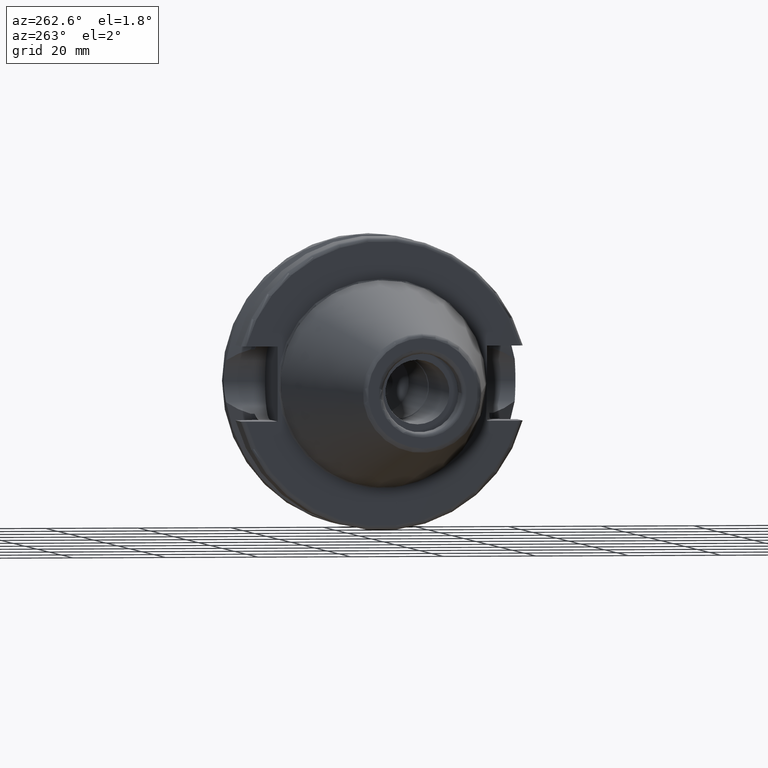
[diagram: clean part render]
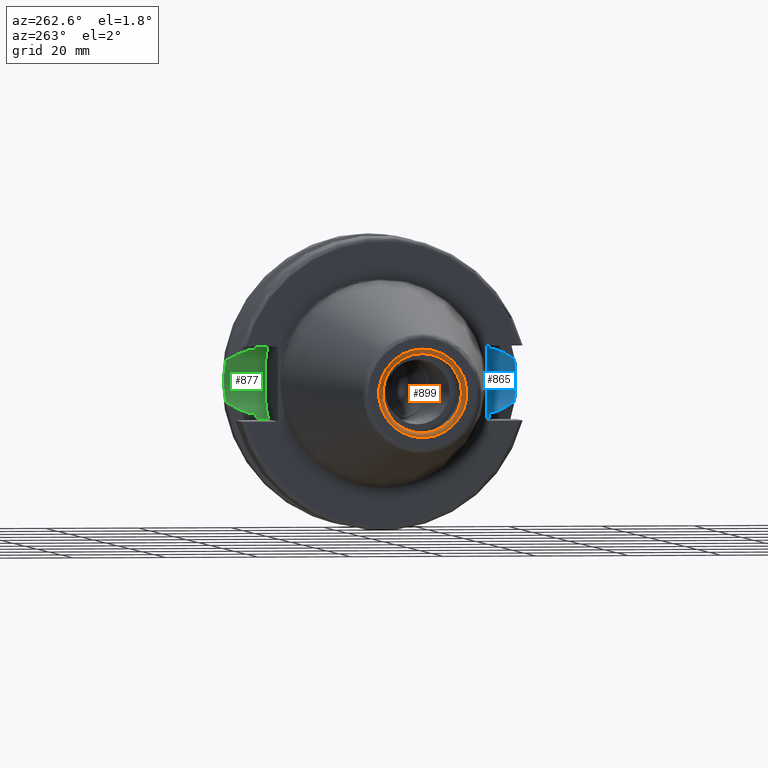
[diagram: same view with three faces highlighted in distinct colors, each labeled with its STEP entity id]
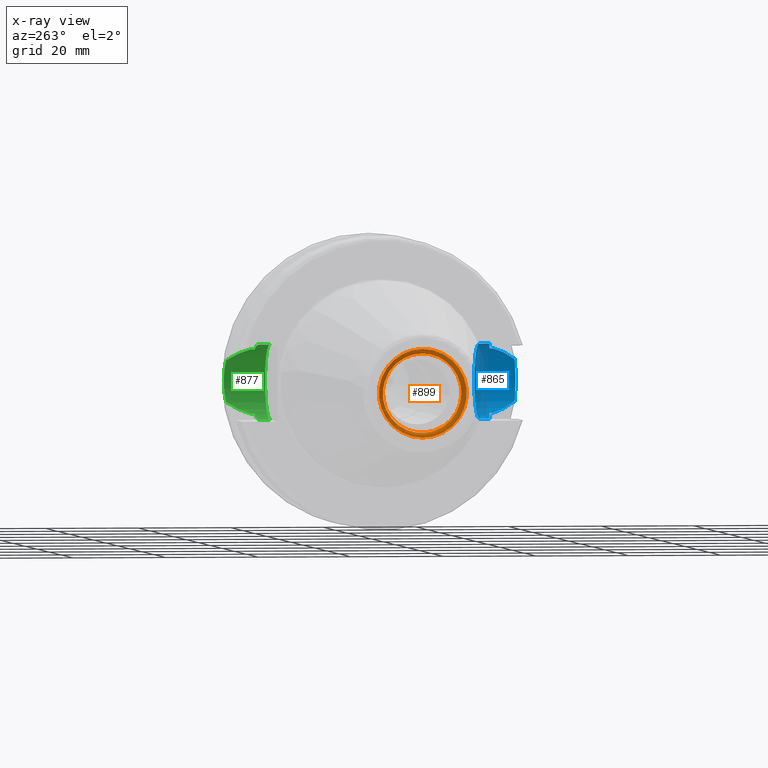
[diagram: x-ray of the same camera — body ghosted, the three highlighted faces saturated]
A machine part, auxiliary view with three faces highlighted in distinct colors.
The next image is the same camera in x-ray (body ghosted, the three faces saturated) — at least one of them is partly hidden behind the body in this view.
Their STEP definitions:

[orange] entity #899 — the highlighted toroidal blend (fillet) surface has major radius 9.5 mm and minor (blend) radius 1 mm.
#41=TOROIDAL_SURFACE('',#1030,9.5,1.);
#116=CIRCLE('',#1028,8.5);
#117=CIRCLE('',#1029,8.5);
#118=CIRCLE('',#1031,9.5);
#119=CIRCLE('',#1032,1.);
#187=FACE_OUTER_BOUND('',#246,.T.);
#246=EDGE_LOOP('',(#840,#841,#842,#843,#844));
#448=VERTEX_POINT('',#1888);
#449=VERTEX_POINT('',#1890);
#450=VERTEX_POINT('',#1894);
#579=EDGE_CURVE('',#449,#448,#116,.T.);
#580=EDGE_CURVE('',#448,#449,#117,.T.);
#581=EDGE_CURVE('',#450,#450,#118,.T.);
#582=EDGE_CURVE('',#450,#449,#119,.T.);
#840=ORIENTED_EDGE('',*,*,#581,.F.);
#841=ORIENTED_EDGE('',*,*,#582,.T.);
#842=ORIENTED_EDGE('',*,*,#579,.T.);
#843=ORIENTED_EDGE('',*,*,#580,.T.);
#844=ORIENTED_EDGE('',*,*,#582,.F.);
#899=ADVANCED_FACE('',(#187),#41,.T.);
#1028=AXIS2_PLACEMENT_3D('',#1891,#1292,#1293);
#1029=AXIS2_PLACEMENT_3D('',#1892,#1294,#1295);
#1030=AXIS2_PLACEMENT_3D('',#1893,#1296,#1297);
#1031=AXIS2_PLACEMENT_3D('',#1895,#1298,#1299);
#1032=AXIS2_PLACEMENT_3D('',#1896,#1300,#1301);
#1292=DIRECTION('center_axis',(1.,0.,0.));
#1293=DIRECTION('ref_axis',(0.,0.,-1.));
#1294=DIRECTION('center_axis',(1.,0.,0.));
#1295=DIRECTION('ref_axis',(0.,0.,-1.));
#1296=DIRECTION('center_axis',(1.,0.,0.));
#1297=DIRECTION('ref_axis',(0.,0.,-1.));
#1298=DIRECTION('center_axis',(1.,0.,0.));
#1299=DIRECTION('ref_axis',(0.,0.,-1.));
#1300=DIRECTION('center_axis',(0.,-1.,-1.22464679914735E-16));
#1301=DIRECTION('ref_axis',(0.,-1.22464679914735E-16,1.));
#1888=CARTESIAN_POINT('',(-64.4,-8.5,-1.04094977927525E-15));
#1890=CARTESIAN_POINT('',(-64.4,-1.04094977927525E-15,8.5));
#1891=CARTESIAN_POINT('Origin',(-64.4,0.,0.));
#1892=CARTESIAN_POINT('Origin',(-64.4,0.,0.));
#1893=CARTESIAN_POINT('Origin',(-64.4,0.,0.));
#1894=CARTESIAN_POINT('',(-65.4,-1.16341445918999E-15,9.5));
#1895=CARTESIAN_POINT('Origin',(-65.4,0.,0.));
#1896=CARTESIAN_POINT('Origin',(-64.4,-1.16341445918999E-15,9.5));

[blue] entity #865 — the highlighted cylindrical surface (partial cylindrical patch) has radius 8.05 mm, axis along (0, 1, 0).
#82=CIRCLE('',#961,8.05);
#126=CYLINDRICAL_SURFACE('',#960,8.05);
#153=FACE_OUTER_BOUND('',#210,.T.);
#210=EDGE_LOOP('',(#657,#658,#659,#660,#661,#662,#663,#664,#665,#666,#667));
#256=B_SPLINE_CURVE_WITH_KNOTS('',3,(#1607,#1608,#1609,#1610,#1611,#1612),
 .UNSPECIFIED.,.F.,.F.,(4,2,4),(2.02427460070182,2.13747311195296,2.44288295924093),
 .UNSPECIFIED.);
#257=B_SPLINE_CURVE_WITH_KNOTS('',3,(#1616,#1617,#1618,#1619,#1620,#1621),
 .UNSPECIFIED.,.F.,.F.,(4,2,4),(3.12975744792551,3.6269928875698,3.7084873746139),
 .UNSPECIFIED.);
#258=B_SPLINE_CURVE_WITH_KNOTS('',3,(#1623,#1624,#1625,#1626,#1627,#1628),
 .UNSPECIFIED.,.F.,.F.,(4,2,4),(1.21877751840372,1.52344857393281,1.67526011710938),
 .UNSPECIFIED.);
#259=B_SPLINE_CURVE_WITH_KNOTS('',3,(#1630,#1631,#1632,#1633,#1634,#1635),
 .UNSPECIFIED.,.F.,.F.,(4,2,4),(0.762294919698049,0.914106462874623,1.21877751840372),
 .UNSPECIFIED.);
#260=B_SPLINE_CURVE_WITH_KNOTS('',3,(#1637,#1638,#1639,#1640,#1641,#1642),
 .UNSPECIFIED.,.F.,.F.,(4,2,4),(1.46421027899563,1.54570476603974,2.04294020568402),
 .UNSPECIFIED.);
#261=B_SPLINE_CURVE_WITH_KNOTS('',3,(#1646,#1647,#1648,#1649,#1650,#1651),
 .UNSPECIFIED.,.F.,.F.,(4,2,4),(0.,0.305409847287967,0.418608358539112),
 .UNSPECIFIED.);
#282=LINE('',#1614,#330);
#283=LINE('',#1644,#331);
#284=LINE('',#1653,#332);
#285=LINE('',#1656,#333);
#330=VECTOR('',#1121,10.);
#331=VECTOR('',#1122,10.);
#332=VECTOR('',#1123,10.);
#333=VECTOR('',#1126,10.);
#390=VERTEX_POINT('',#1605);
#391=VERTEX_POINT('',#1606);
#392=VERTEX_POINT('',#1613);
#393=VERTEX_POINT('',#1615);
#394=VERTEX_POINT('',#1622);
#395=VERTEX_POINT('',#1629);
#396=VERTEX_POINT('',#1636);
#397=VERTEX_POINT('',#1643);
#398=VERTEX_POINT('',#1645);
#399=VERTEX_POINT('',#1652);
#400=VERTEX_POINT('',#1654);
#489=EDGE_CURVE('',#390,#391,#256,.T.);
#490=EDGE_CURVE('',#392,#390,#282,.T.);
#491=EDGE_CURVE('',#393,#392,#257,.T.);
#492=EDGE_CURVE('',#394,#393,#258,.T.);
#493=EDGE_CURVE('',#395,#394,#259,.T.);
#494=EDGE_CURVE('',#396,#395,#260,.T.);
#495=EDGE_CURVE('',#397,#396,#283,.T.);
#496=EDGE_CURVE('',#398,#397,#261,.T.);
#497=EDGE_CURVE('',#399,#398,#284,.T.);
#498=EDGE_CURVE('',#399,#400,#82,.T.);
#499=EDGE_CURVE('',#400,#391,#285,.T.);
#657=ORIENTED_EDGE('',*,*,#489,.F.);
#658=ORIENTED_EDGE('',*,*,#490,.F.);
#659=ORIENTED_EDGE('',*,*,#491,.F.);
#660=ORIENTED_EDGE('',*,*,#492,.F.);
#661=ORIENTED_EDGE('',*,*,#493,.F.);
#662=ORIENTED_EDGE('',*,*,#494,.F.);
#663=ORIENTED_EDGE('',*,*,#495,.F.);
#664=ORIENTED_EDGE('',*,*,#496,.F.);
#665=ORIENTED_EDGE('',*,*,#497,.F.);
#666=ORIENTED_EDGE('',*,*,#498,.T.);
#667=ORIENTED_EDGE('',*,*,#499,.T.);
#865=ADVANCED_FACE('',(#153),#126,.F.);
#960=AXIS2_PLACEMENT_3D('',#1604,#1119,#1120);
#961=AXIS2_PLACEMENT_3D('',#1655,#1124,#1125);
#1119=DIRECTION('center_axis',(0.,1.,0.));
#1120=DIRECTION('ref_axis',(0.,0.,1.));
#1121=DIRECTION('',(0.,1.,0.));
#1122=DIRECTION('',(0.,-1.,0.));
#1123=DIRECTION('',(0.,-1.,0.));
#1124=DIRECTION('center_axis',(0.,1.,0.));
#1125=DIRECTION('ref_axis',(0.,0.,1.));
#1126=DIRECTION('',(0.,-1.,0.));
#1604=CARTESIAN_POINT('Origin',(14.95,-22.6,0.));
#1605=CARTESIAN_POINT('',(19.1,-25.3793222919762,-6.89782574439221));
#1606=CARTESIAN_POINT('',(14.95,-25.0377215417058,-8.05));
#1607=CARTESIAN_POINT('Ctrl Pts',(19.1,-25.3793222919762,-6.89782574439221));
#1608=CARTESIAN_POINT('Ctrl Pts',(18.7623374744972,-25.3241080721198,-7.10097664045187));
#1609=CARTESIAN_POINT('Ctrl Pts',(18.4068260684762,-25.2726009715968,-7.28086186600679));
#1610=CARTESIAN_POINT('Ctrl Pts',(17.0490724969254,-25.1063150193149,-7.84520188991776));
#1611=CARTESIAN_POINT('Ctrl Pts',(15.9680328242932,-25.0377215417058,-8.05));
#1612=CARTESIAN_POINT('Ctrl Pts',(14.95,-25.0377215417058,-8.05));
#1613=CARTESIAN_POINT('',(19.1,-26.201311395455,-6.89782574439221));
#1614=CARTESIAN_POINT('',(19.1,-22.6,-6.89782574439221));
#1615=CARTESIAN_POINT('',(21.6309636926618,-31.1782420264945,-4.49079326370462));
#1616=CARTESIAN_POINT('Ctrl Pts',(21.6309636926618,-31.1782420264945,-4.49079326370461));
#1617=CARTESIAN_POINT('Ctrl Pts',(20.9728756148302,-29.8797957262939,-5.46983244373119));
#1618=CARTESIAN_POINT('Ctrl Pts',(20.1784155384866,-28.3157123387483,-6.1823136897693));
#1619=CARTESIAN_POINT('Ctrl Pts',(19.3406963650696,-26.6728819297427,-6.74867108656043));
#1620=CARTESIAN_POINT('Ctrl Pts',(19.2210929544554,-26.438473693351,-6.82497151762397));
#1621=CARTESIAN_POINT('Ctrl Pts',(19.1,-26.201311395455,-6.89782574439222));
#1622=CARTESIAN_POINT('',(23.,-31.5,-2.34515234289152E-15));
#1623=CARTESIAN_POINT('Ctrl Pts',(23.,-31.5,-1.11022302462516E-15));
#1624=CARTESIAN_POINT('Ctrl Pts',(23.,-31.5,-1.01557018509698));
#1625=CARTESIAN_POINT('Ctrl Pts',(22.7961189876535,-31.445974204441,-2.09580170425552));
#1626=CARTESIAN_POINT('Ctrl Pts',(22.1796133812044,-31.2997625705024,-3.5806535819887));
#1627=CARTESIAN_POINT('Ctrl Pts',(21.92482980253,-31.2412125047166,-4.05360796141052));
#1628=CARTESIAN_POINT('Ctrl Pts',(21.6309636926618,-31.1782420264945,-4.49079326370462));
#1629=CARTESIAN_POINT('',(21.6309636926618,-31.1782420264945,4.49079326370462));
#1630=CARTESIAN_POINT('Ctrl Pts',(21.6309636926618,-31.1782420264945,4.49079326370462));
#1631=CARTESIAN_POINT('Ctrl Pts',(21.92482980253,-31.2412125047166,4.05360796141052));
#1632=CARTESIAN_POINT('Ctrl Pts',(22.1796133812044,-31.2997625705024,3.5806535819887));
#1633=CARTESIAN_POINT('Ctrl Pts',(22.7961189876535,-31.445974204441,2.09580170425552));
#1634=CARTESIAN_POINT('Ctrl Pts',(23.,-31.5,1.01557018509698));
#1635=CARTESIAN_POINT('Ctrl Pts',(23.,-31.5,-1.11022302462516E-15));
#1636=CARTESIAN_POINT('',(19.1,-26.201311395455,6.89782574439221));
#1637=CARTESIAN_POINT('Ctrl Pts',(19.1,-26.201311395455,6.89782574439221));
#1638=CARTESIAN_POINT('Ctrl Pts',(19.2210929544554,-26.438473693351,6.82497151762397));
#1639=CARTESIAN_POINT('Ctrl Pts',(19.3406963650696,-26.6728819297427,6.74867108656043));
#1640=CARTESIAN_POINT('Ctrl Pts',(20.1784155384866,-28.3157123387483,6.1823136897693));
#1641=CARTESIAN_POINT('Ctrl Pts',(20.9728756148302,-29.8797957262938,5.46983244373119));
#1642=CARTESIAN_POINT('Ctrl Pts',(21.6309636926618,-31.1782420264945,4.49079326370462));
#1643=CARTESIAN_POINT('',(19.1,-25.3793222919762,6.89782574439221));
#1644=CARTESIAN_POINT('',(19.1,-22.6,6.89782574439221));
#1645=CARTESIAN_POINT('',(14.95,-25.0377215417058,8.05));
#1646=CARTESIAN_POINT('Ctrl Pts',(14.95,-25.0377215417058,8.05));
#1647=CARTESIAN_POINT('Ctrl Pts',(15.9680328242932,-25.0377215417058,8.05));
#1648=CARTESIAN_POINT('Ctrl Pts',(17.0490724969254,-25.1063150193149,7.84520188991776));
#1649=CARTESIAN_POINT('Ctrl Pts',(18.4068260684762,-25.2726009715968,7.28086186600679));
#1650=CARTESIAN_POINT('Ctrl Pts',(18.7623374744972,-25.3241080721198,7.10097664045187));
#1651=CARTESIAN_POINT('Ctrl Pts',(19.1,-25.3793222919762,6.89782574439221));
#1652=CARTESIAN_POINT('',(14.95,-22.6,8.05));
#1653=CARTESIAN_POINT('',(14.95,-22.6,8.05));
#1654=CARTESIAN_POINT('',(14.95,-22.6,-8.05));
#1655=CARTESIAN_POINT('Origin',(14.95,-22.6,0.));
#1656=CARTESIAN_POINT('',(14.95,-22.6,-8.05));

[green] entity #877 — the highlighted cylindrical surface (partial cylindrical patch) has radius 8.05 mm, axis along (0, 1, 0).
#94=CIRCLE('',#985,8.05);
#130=CYLINDRICAL_SURFACE('',#984,8.05);
#165=FACE_OUTER_BOUND('',#222,.T.);
#222=EDGE_LOOP('',(#727,#728,#729,#730,#731,#732,#733,#734,#735,#736));
#264=B_SPLINE_CURVE_WITH_KNOTS('',3,(#1717,#1718,#1719,#1720,#1721,#1722,
#1723,#1724,#1725,#1726),.UNSPECIFIED.,.F.,.F.,(4,2,2,2,4),(3.19984995650548,
3.35166149968205,3.65633255521115,3.96100361074024,4.11281515391681),
 .UNSPECIFIED.);
#265=B_SPLINE_CURVE_WITH_KNOTS('',3,(#1732,#1733,#1734,#1735,#1736,#1737),
 .UNSPECIFIED.,.F.,.F.,(4,2,4),(1.46421027899563,1.54570476603974,2.04294020568402),
 .UNSPECIFIED.);
#266=B_SPLINE_CURVE_WITH_KNOTS('',3,(#1747,#1748,#1749,#1750,#1751,#1752),
 .UNSPECIFIED.,.F.,.F.,(4,2,4),(2.44288295924093,2.7482928065289,2.86149131778004),
 .UNSPECIFIED.);
#268=B_SPLINE_CURVE_WITH_KNOTS('',3,(#1788,#1789,#1790,#1791,#1792,#1793),
 .UNSPECIFIED.,.F.,.F.,(4,2,4),(-0.418608358539113,-0.305409847287967,0.),
 .UNSPECIFIED.);
#269=B_SPLINE_CURVE_WITH_KNOTS('',3,(#1796,#1797,#1798,#1799,#1800,#1801),
 .UNSPECIFIED.,.F.,.F.,(4,2,4),(3.12975744792551,3.6269928875698,3.7084873746139),
 .UNSPECIFIED.);
#298=LINE('',#1741,#346);
#302=LINE('',#1782,#350);
#303=LINE('',#1786,#351);
#304=LINE('',#1795,#352);
#346=VECTOR('',#1163,10.);
#350=VECTOR('',#1189,10.);
#351=VECTOR('',#1192,10.);
#352=VECTOR('',#1193,10.);
#415=VERTEX_POINT('',#1714);
#416=VERTEX_POINT('',#1716);
#417=VERTEX_POINT('',#1730);
#418=VERTEX_POINT('',#1739);
#420=VERTEX_POINT('',#1745);
#425=VERTEX_POINT('',#1781);
#426=VERTEX_POINT('',#1783);
#427=VERTEX_POINT('',#1785);
#428=VERTEX_POINT('',#1787);
#429=VERTEX_POINT('',#1794);
#518=EDGE_CURVE('',#415,#416,#264,.T.);
#522=EDGE_CURVE('',#417,#415,#265,.T.);
#524=EDGE_CURVE('',#418,#417,#298,.T.);
#527=EDGE_CURVE('',#420,#418,#266,.T.);
#536=EDGE_CURVE('',#425,#420,#302,.T.);
#537=EDGE_CURVE('',#426,#425,#94,.T.);
#538=EDGE_CURVE('',#426,#427,#303,.T.);
#539=EDGE_CURVE('',#428,#427,#268,.T.);
#540=EDGE_CURVE('',#429,#428,#304,.T.);
#541=EDGE_CURVE('',#416,#429,#269,.T.);
#727=ORIENTED_EDGE('',*,*,#527,.F.);
#728=ORIENTED_EDGE('',*,*,#536,.F.);
#729=ORIENTED_EDGE('',*,*,#537,.F.);
#730=ORIENTED_EDGE('',*,*,#538,.T.);
#731=ORIENTED_EDGE('',*,*,#539,.F.);
#732=ORIENTED_EDGE('',*,*,#540,.F.);
#733=ORIENTED_EDGE('',*,*,#541,.F.);
#734=ORIENTED_EDGE('',*,*,#518,.F.);
#735=ORIENTED_EDGE('',*,*,#522,.F.);
#736=ORIENTED_EDGE('',*,*,#524,.F.);
#877=ADVANCED_FACE('',(#165),#130,.F.);
#984=AXIS2_PLACEMENT_3D('',#1780,#1187,#1188);
#985=AXIS2_PLACEMENT_3D('',#1784,#1190,#1191);
#1163=DIRECTION('',(0.,1.,0.));
#1187=DIRECTION('center_axis',(0.,1.,0.));
#1188=DIRECTION('ref_axis',(0.,0.,1.));
#1189=DIRECTION('',(0.,1.,0.));
#1190=DIRECTION('center_axis',(0.,1.,0.));
#1191=DIRECTION('ref_axis',(0.,0.,1.));
#1192=DIRECTION('',(0.,1.,0.));
#1193=DIRECTION('',(0.,-1.,0.));
#1714=CARTESIAN_POINT('',(21.6309636926618,31.1782420264945,-4.49079326370462));
#1716=CARTESIAN_POINT('',(21.6309636926618,31.1782420264945,4.49079326370462));
#1717=CARTESIAN_POINT('Ctrl Pts',(21.6309636926618,31.1782420264945,-4.49079326370462));
#1718=CARTESIAN_POINT('Ctrl Pts',(21.92482980253,31.2412125047166,-4.05360796141052));
#1719=CARTESIAN_POINT('Ctrl Pts',(22.1796133812043,31.2997625705024,-3.5806535819887));
#1720=CARTESIAN_POINT('Ctrl Pts',(22.7961189876535,31.445974204441,-2.09580170425552));
#1721=CARTESIAN_POINT('Ctrl Pts',(23.,31.5,-1.01557018509698));
#1722=CARTESIAN_POINT('Ctrl Pts',(23.,31.5,1.01557018509698));
#1723=CARTESIAN_POINT('Ctrl Pts',(22.7961189876535,31.445974204441,2.09580170425552));
#1724=CARTESIAN_POINT('Ctrl Pts',(22.1796133812044,31.2997625705024,3.5806535819887));
#1725=CARTESIAN_POINT('Ctrl Pts',(21.92482980253,31.2412125047166,4.05360796141052));
#1726=CARTESIAN_POINT('Ctrl Pts',(21.6309636926618,31.1782420264945,4.49079326370462));
#1730=CARTESIAN_POINT('',(19.1,26.201311395455,-6.89782574439221));
#1732=CARTESIAN_POINT('Ctrl Pts',(19.1,26.201311395455,-6.89782574439221));
#1733=CARTESIAN_POINT('Ctrl Pts',(19.2210929544554,26.438473693351,-6.82497151762396));
#1734=CARTESIAN_POINT('Ctrl Pts',(19.3406963650696,26.6728819297427,-6.74867108656043));
#1735=CARTESIAN_POINT('Ctrl Pts',(20.1784155384866,28.3157123387483,-6.1823136897693));
#1736=CARTESIAN_POINT('Ctrl Pts',(20.9728756148302,29.8797957262938,-5.46983244373119));
#1737=CARTESIAN_POINT('Ctrl Pts',(21.6309636926618,31.1782420264945,-4.49079326370462));
#1739=CARTESIAN_POINT('',(19.1,25.3793222919762,-6.89782574439221));
#1741=CARTESIAN_POINT('',(19.1,22.6,-6.89782574439221));
#1745=CARTESIAN_POINT('',(14.95,25.0377215417058,-8.05));
#1747=CARTESIAN_POINT('Ctrl Pts',(14.95,25.0377215417058,-8.05));
#1748=CARTESIAN_POINT('Ctrl Pts',(15.9680328242932,25.0377215417058,-8.05));
#1749=CARTESIAN_POINT('Ctrl Pts',(17.0490724969254,25.1063150193149,-7.84520188991776));
#1750=CARTESIAN_POINT('Ctrl Pts',(18.4068260684762,25.2726009715968,-7.28086186600679));
#1751=CARTESIAN_POINT('Ctrl Pts',(18.7623374744972,25.3241080721198,-7.10097664045187));
#1752=CARTESIAN_POINT('Ctrl Pts',(19.1,25.3793222919762,-6.89782574439221));
#1780=CARTESIAN_POINT('Origin',(14.95,22.6,0.));
#1781=CARTESIAN_POINT('',(14.95,22.6,-8.05));
#1782=CARTESIAN_POINT('',(14.95,22.6,-8.05));
#1783=CARTESIAN_POINT('',(14.95,22.6,8.05));
#1784=CARTESIAN_POINT('Origin',(14.95,22.6,0.));
#1785=CARTESIAN_POINT('',(14.95,25.0377215417058,8.05));
#1786=CARTESIAN_POINT('',(14.95,22.6,8.05));
#1787=CARTESIAN_POINT('',(19.1,25.3793222919762,6.89782574439221));
#1788=CARTESIAN_POINT('Ctrl Pts',(19.1,25.3793222919762,6.89782574439221));
#1789=CARTESIAN_POINT('Ctrl Pts',(18.7623374744972,25.3241080721198,7.10097664045187));
#1790=CARTESIAN_POINT('Ctrl Pts',(18.4068260684762,25.2726009715968,7.28086186600679));
#1791=CARTESIAN_POINT('Ctrl Pts',(17.0490724969254,25.1063150193149,7.84520188991776));
#1792=CARTESIAN_POINT('Ctrl Pts',(15.9680328242932,25.0377215417058,8.05));
#1793=CARTESIAN_POINT('Ctrl Pts',(14.95,25.0377215417058,8.05));
#1794=CARTESIAN_POINT('',(19.1,26.201311395455,6.89782574439221));
#1795=CARTESIAN_POINT('',(19.1,22.6,6.89782574439221));
#1796=CARTESIAN_POINT('Ctrl Pts',(21.6309636926618,31.1782420264945,4.49079326370461));
#1797=CARTESIAN_POINT('Ctrl Pts',(20.9728756148302,29.8797957262938,5.46983244373119));
#1798=CARTESIAN_POINT('Ctrl Pts',(20.1784155384866,28.3157123387483,6.1823136897693));
#1799=CARTESIAN_POINT('Ctrl Pts',(19.3406963650696,26.6728819297427,6.74867108656043));
#1800=CARTESIAN_POINT('Ctrl Pts',(19.2210929544554,26.438473693351,6.82497151762397));
#1801=CARTESIAN_POINT('Ctrl Pts',(19.1,26.201311395455,6.89782574439222));